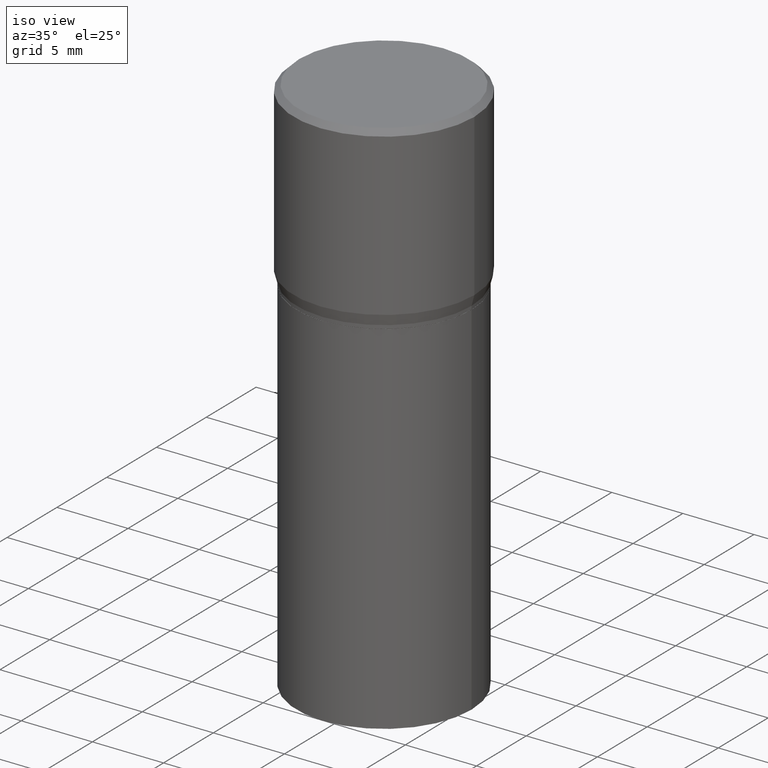
[diagram: clean part render]
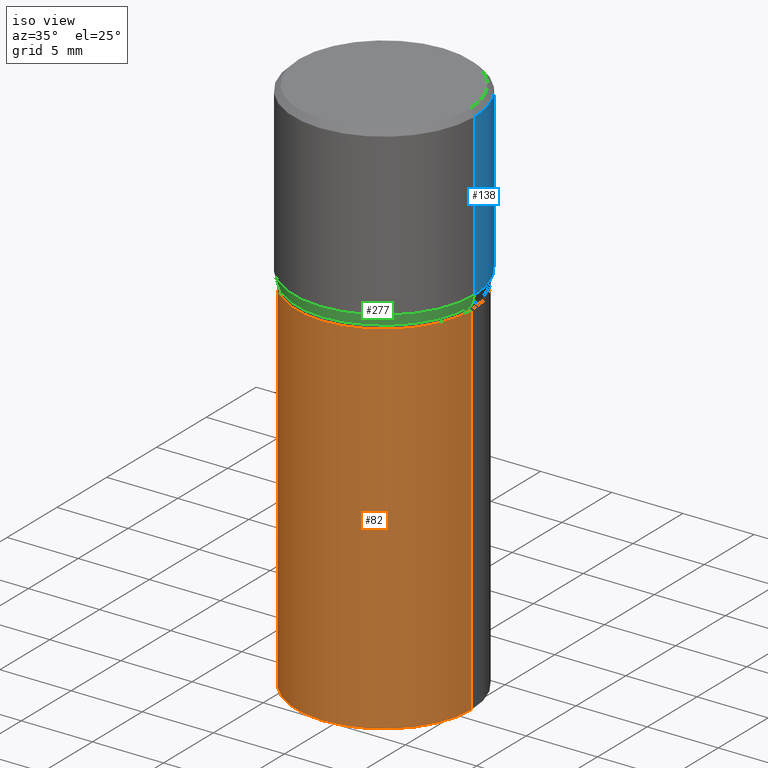
[diagram: same view with three faces highlighted in distinct colors, each labeled with its STEP entity id]
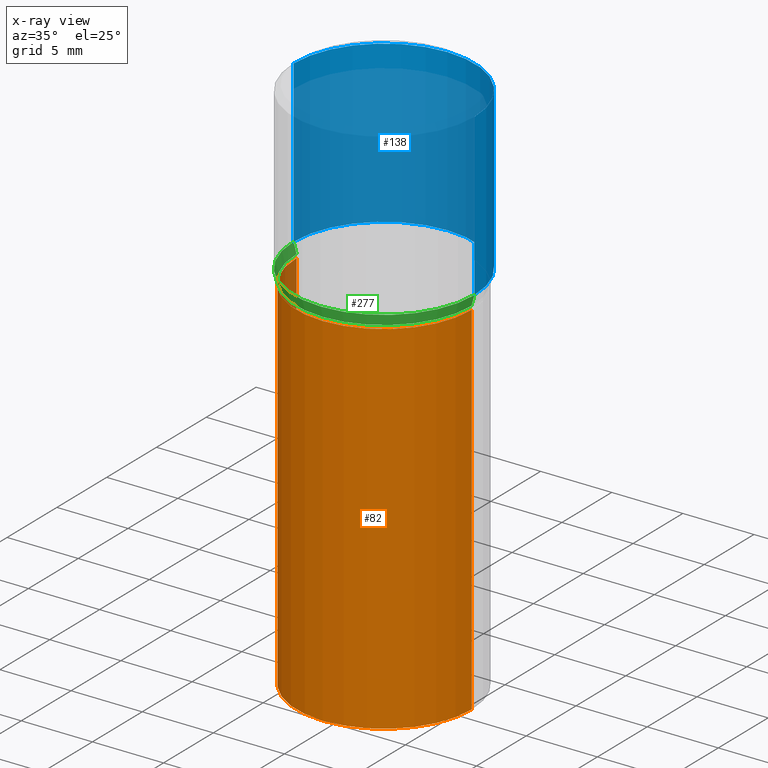
[diagram: x-ray of the same camera — body ghosted, the three highlighted faces saturated]
A machine part, iso view with three faces highlighted in distinct colors.
The next image is the same camera in x-ray (body ghosted, the three faces saturated) — at least one of them is partly hidden behind the body in this view.
Their STEP definitions:

[orange] entity #82 — the highlighted cylindrical surface (partial cylindrical patch) has radius 6.1519 mm, axis along (-0, 0, 1).
#2 = VERTEX_POINT ( 'NONE', #107 ) ;
#18 = VECTOR ( 'NONE', #117, 39.37007874015748143 ) ;
#25 = CIRCLE ( 'NONE', #266, 0.2422000000000000264 ) ;
#29 = LINE ( 'NONE', #422, #116 ) ;
#31 = CARTESIAN_POINT ( 'NONE',  ( 3.668203209277704895E-29, -5.237222008264718177E-15, -1.500000000000000222 ) ) ;
#60 = DIRECTION ( 'NONE',  ( 1.000000000000000000, -6.982962677686266711E-15, 0.000000000000000000 ) ) ;
#65 = ORIENTED_EDGE ( 'NONE', *, *, #213, .T. ) ;
#78 = ORIENTED_EDGE ( 'NONE', *, *, #456, .F. ) ;
#82 = ADVANCED_FACE ( 'NONE', ( #289 ), #287, .T. ) ;
#84 = CARTESIAN_POINT ( 'NONE',  ( -0.2422000000000000264, -1.770546832832183337E-15, -0.5000000000000001110 ) ) ;
#107 = CARTESIAN_POINT ( 'NONE',  ( -0.2422000000000000264, -1.770546832832183337E-15, -1.500000000000000222 ) ) ;
#114 = CARTESIAN_POINT ( 'NONE',  ( 0.2422000000000000264, -6.928495568800332365E-15, -1.500000000000000222 ) ) ;
#116 = VECTOR ( 'NONE', #210, 39.37007874015748143 ) ;
#117 = DIRECTION ( 'NONE',  ( -2.445468806185136877E-29, 3.491481338843145188E-15, 1.000000000000000000 ) ) ;
#121 = LINE ( 'NONE', #160, #18 ) ;
#130 = DIRECTION ( 'NONE',  ( -2.445468806185136597E-29, 3.491481338843145583E-15, 1.000000000000000000 ) ) ;
#160 = CARTESIAN_POINT ( 'NONE',  ( 0.2422000000000000264, -1.691273560535613991E-15, 1.181010015097775692E-29 ) ) ;
#186 = DIRECTION ( 'NONE',  ( 1.000000000000000000, -6.982962677686266711E-15, 4.876176775795935232E-29 ) ) ;
#200 = CIRCLE ( 'NONE', #362, 0.2422000000000000264 ) ;
#202 = VERTEX_POINT ( 'NONE', #84 ) ;
#210 = DIRECTION ( 'NONE',  ( -2.445468806185136877E-29, 3.491481338843145188E-15, 1.000000000000000000 ) ) ;
#213 = EDGE_CURVE ( 'NONE', #220, #218, #121, .T. ) ;
#218 = VERTEX_POINT ( 'NONE', #407 ) ;
#220 = VERTEX_POINT ( 'NONE', #114 ) ;
#266 = AXIS2_PLACEMENT_3D ( 'NONE', #31, #412, #462 ) ;
#287 = CYLINDRICAL_SURFACE ( 'NONE', #301, 0.2422000000000000264 ) ;
#289 = FACE_OUTER_BOUND ( 'NONE', #315, .T. ) ;
#301 = AXIS2_PLACEMENT_3D ( 'NONE', #321, #398, #186 ) ;
#315 = EDGE_LOOP ( 'NONE', ( #380, #389, #65, #78 ) ) ;
#321 = CARTESIAN_POINT ( 'NONE',  ( 0.000000000000000000, 0.000000000000000000, 0.000000000000000000 ) ) ;
#362 = AXIS2_PLACEMENT_3D ( 'NONE', #372, #130, #60 ) ;
#364 = EDGE_CURVE ( 'NONE', #2, #220, #25, .T. ) ;
#372 = CARTESIAN_POINT ( 'NONE',  ( 1.222734403092568719E-29, -1.745740669421573186E-15, -0.5000000000000001110 ) ) ;
#380 = ORIENTED_EDGE ( 'NONE', *, *, #437, .F. ) ;
#389 = ORIENTED_EDGE ( 'NONE', *, *, #364, .T. ) ;
#398 = DIRECTION ( 'NONE',  ( -2.445468806185136597E-29, 3.491481338843145583E-15, 1.000000000000000000 ) ) ;
#407 = CARTESIAN_POINT ( 'NONE',  ( 0.2422000000000000264, -3.437014229957187177E-15, -0.5000000000000001110 ) ) ;
#412 = DIRECTION ( 'NONE',  ( -2.445468806185136597E-29, 3.491481338843145583E-15, 1.000000000000000000 ) ) ;
#422 = CARTESIAN_POINT ( 'NONE',  ( -0.2422000000000000264, 1.720934506010962838E-15, -1.191366078859738205E-29 ) ) ;
#437 = EDGE_CURVE ( 'NONE', #2, #202, #29, .T. ) ;
#456 = EDGE_CURVE ( 'NONE', #202, #218, #200, .T. ) ;
#462 = DIRECTION ( 'NONE',  ( 1.000000000000000000, -6.982962677686265922E-15, 0.000000000000000000 ) ) ;

[blue] entity #138 — the highlighted cylindrical surface (partial cylindrical patch) has radius 6.35 mm, axis along (-0, 0, 1).
#32 = EDGE_LOOP ( 'NONE', ( #423, #388, #458, #413 ) ) ;
#41 = DIRECTION ( 'NONE',  ( 1.000000000000000000, -6.982962677686266711E-15, 0.000000000000000000 ) ) ;
#46 = DIRECTION ( 'NONE',  ( -2.445468806185136597E-29, 3.491481338843145583E-15, 1.000000000000000000 ) ) ;
#56 = VERTEX_POINT ( 'NONE', #189 ) ;
#81 = CARTESIAN_POINT ( 'NONE',  ( 0.2500000000000000000, -1.798112889504214151E-15, -0.01499999999999999944 ) ) ;
#93 = CARTESIAN_POINT ( 'NONE',  ( 1.127092127133256402E-29, -1.609188847181259404E-15, -0.4608900037009626693 ) ) ;
#99 = EDGE_CURVE ( 'NONE', #219, #463, #273, .T. ) ;
#105 = LINE ( 'NONE', #247, #109 ) ;
#109 = VECTOR ( 'NONE', #318, 39.37007874015748143 ) ;
#113 = FACE_OUTER_BOUND ( 'NONE', #32, .T. ) ;
#128 = VERTEX_POINT ( 'NONE', #440 ) ;
#131 = AXIS2_PLACEMENT_3D ( 'NONE', #443, #352, #41 ) ;
#138 = ADVANCED_FACE ( 'NONE', ( #113 ), #176, .T. ) ;
#139 = CARTESIAN_POINT ( 'NONE',  ( -0.2500000000000000000, 9.455763057682970257E-16, -0.01499999999999999944 ) ) ;
#159 = LINE ( 'NONE', #230, #228 ) ;
#176 = CYLINDRICAL_SURFACE ( 'NONE', #187, 0.2500000000000000000 ) ;
#181 = EDGE_CURVE ( 'NONE', #56, #219, #105, .T. ) ;
#187 = AXIS2_PLACEMENT_3D ( 'NONE', #214, #46, #257 ) ;
#189 = CARTESIAN_POINT ( 'NONE',  ( 0.2500000000000000000, -3.354929516602825687E-15, -0.4608900037009626693 ) ) ;
#204 = DIRECTION ( 'NONE',  ( 1.000000000000000000, -6.982962677686266711E-15, 0.000000000000000000 ) ) ;
#207 = DIRECTION ( 'NONE',  ( -2.445468806185136597E-29, 3.491481338843145583E-15, 1.000000000000000000 ) ) ;
#214 = CARTESIAN_POINT ( 'NONE',  ( 0.000000000000000000, 0.000000000000000000, 0.000000000000000000 ) ) ;
#219 = VERTEX_POINT ( 'NONE', #81 ) ;
#228 = VECTOR ( 'NONE', #369, 39.37007874015748143 ) ;
#230 = CARTESIAN_POINT ( 'NONE',  ( -0.2500000000000000000, 1.776356839400250465E-15, -1.229733772563726445E-29 ) ) ;
#247 = CARTESIAN_POINT ( 'NONE',  ( 0.2500000000000000000, -1.745740669421566678E-15, 1.219044193948983948E-29 ) ) ;
#257 = DIRECTION ( 'NONE',  ( 1.000000000000000000, -6.982962677686266711E-15, 4.876176775795935793E-29 ) ) ;
#273 = CIRCLE ( 'NONE', #131, 0.2500000000000000000 ) ;
#279 = EDGE_CURVE ( 'NONE', #128, #463, #159, .T. ) ;
#318 = DIRECTION ( 'NONE',  ( -2.445468806185136877E-29, 3.491481338843145188E-15, 1.000000000000000000 ) ) ;
#338 = AXIS2_PLACEMENT_3D ( 'NONE', #93, #207, #204 ) ;
#347 = CIRCLE ( 'NONE', #338, 0.2500000000000000000 ) ;
#352 = DIRECTION ( 'NONE',  ( -2.445468806185136597E-29, 3.491481338843145583E-15, 1.000000000000000000 ) ) ;
#369 = DIRECTION ( 'NONE',  ( -2.445468806185136877E-29, 3.491481338843145188E-15, 1.000000000000000000 ) ) ;
#378 = EDGE_CURVE ( 'NONE', #56, #128, #347, .T. ) ;
#388 = ORIENTED_EDGE ( 'NONE', *, *, #279, .T. ) ;
#413 = ORIENTED_EDGE ( 'NONE', *, *, #181, .F. ) ;
#423 = ORIENTED_EDGE ( 'NONE', *, *, #378, .T. ) ;
#440 = CARTESIAN_POINT ( 'NONE',  ( -0.2500000000000000000, 1.671679922189909619E-16, -0.4608900037009626693 ) ) ;
#443 = CARTESIAN_POINT ( 'NONE',  ( 3.668203209277705088E-31, -5.237222008264718399E-17, -0.01499999999999999944 ) ) ;
#458 = ORIENTED_EDGE ( 'NONE', *, *, #99, .F. ) ;
#463 = VERTEX_POINT ( 'NONE', #139 ) ;

[green] entity #277 — the highlighted conical surface has half-angle 15 deg.
#21 = DIRECTION ( 'NONE',  ( 1.000000000000000000, -6.982962677686266711E-15, 0.000000000000000000 ) ) ;
#23 = EDGE_CURVE ( 'NONE', #126, #314, #243, .T. ) ;
#27 = ORIENTED_EDGE ( 'NONE', *, *, #35, .F. ) ;
#35 = EDGE_CURVE ( 'NONE', #128, #56, #192, .T. ) ;
#49 = CARTESIAN_POINT ( 'NONE',  ( -0.2421999999999999431, 1.010864997782067697E-17, -0.4900000000000001021 ) ) ;
#56 = VERTEX_POINT ( 'NONE', #189 ) ;
#71 = DIRECTION ( 'NONE',  ( -2.445468806185136597E-29, 3.491481338843145583E-15, 1.000000000000000000 ) ) ;
#76 = CARTESIAN_POINT ( 'NONE',  ( 1.127092127133256402E-29, -1.609188847181259404E-15, -0.4608900037009626693 ) ) ;
#85 = AXIS2_PLACEMENT_3D ( 'NONE', #334, #330, #21 ) ;
#96 = CARTESIAN_POINT ( 'NONE',  ( 0.2421999999999999431, -3.402099416568755134E-15, -0.4900000000000001021 ) ) ;
#103 = ORIENTED_EDGE ( 'NONE', *, *, #269, .F. ) ;
#122 = AXIS2_PLACEMENT_3D ( 'NONE', #76, #149, #282 ) ;
#126 = VERTEX_POINT ( 'NONE', #147 ) ;
#128 = VERTEX_POINT ( 'NONE', #440 ) ;
#147 = CARTESIAN_POINT ( 'NONE',  ( -0.2421999999999999431, 8.863832109840594652E-17, -0.4900000000000001021 ) ) ;
#149 = DIRECTION ( 'NONE',  ( -2.445468806185136597E-29, 3.491481338843145583E-15, 1.000000000000000000 ) ) ;
#189 = CARTESIAN_POINT ( 'NONE',  ( 0.2500000000000000000, -3.354929516602825687E-15, -0.4608900037009626693 ) ) ;
#192 = CIRCLE ( 'NONE', #122, 0.2500000000000000000 ) ;
#212 = CARTESIAN_POINT ( 'NONE',  ( 1.198279715030717173E-29, -1.710825856033141537E-15, -0.4900000000000001021 ) ) ;
#243 = CIRCLE ( 'NONE', #418, 0.2421999999999999431 ) ;
#244 = CARTESIAN_POINT ( 'NONE',  ( 0.2421999999999999431, -3.402099416568755134E-15, -0.4900000000000001021 ) ) ;
#269 = EDGE_CURVE ( 'NONE', #126, #128, #365, .T. ) ;
#277 = ADVANCED_FACE ( 'NONE', ( #448 ), #286, .T. ) ;
#282 = DIRECTION ( 'NONE',  ( 1.000000000000000000, -6.982962677686266711E-15, 0.000000000000000000 ) ) ;
#286 = CONICAL_SURFACE ( 'NONE', #85, 0.2421999999999999431, 0.2617993877991494078 ) ;
#295 = DIRECTION ( 'NONE',  ( -0.2588190451025206840, 5.211531920934545520E-15, 0.9659258262890682012 ) ) ;
#314 = VERTEX_POINT ( 'NONE', #244 ) ;
#317 = VECTOR ( 'NONE', #339, 39.37007874015748854 ) ;
#330 = DIRECTION ( 'NONE',  ( -2.445468806185136597E-29, 3.491481338843145583E-15, 1.000000000000000000 ) ) ;
#334 = CARTESIAN_POINT ( 'NONE',  ( 1.198279715030717173E-29, -1.710825856033141537E-15, -0.4900000000000001021 ) ) ;
#339 = DIRECTION ( 'NONE',  ( 0.2588190451025206840, 1.565188264969626504E-15, 0.9659258262890682012 ) ) ;
#341 = EDGE_CURVE ( 'NONE', #314, #56, #420, .T. ) ;
#343 = ORIENTED_EDGE ( 'NONE', *, *, #341, .T. ) ;
#357 = EDGE_LOOP ( 'NONE', ( #103, #382, #343, #27 ) ) ;
#365 = LINE ( 'NONE', #49, #438 ) ;
#382 = ORIENTED_EDGE ( 'NONE', *, *, #23, .T. ) ;
#396 = DIRECTION ( 'NONE',  ( 1.000000000000000000, -6.982962677686266711E-15, 0.000000000000000000 ) ) ;
#418 = AXIS2_PLACEMENT_3D ( 'NONE', #212, #71, #396 ) ;
#420 = LINE ( 'NONE', #96, #317 ) ;
#438 = VECTOR ( 'NONE', #295, 39.37007874015748854 ) ;
#440 = CARTESIAN_POINT ( 'NONE',  ( -0.2500000000000000000, 1.671679922189909619E-16, -0.4608900037009626693 ) ) ;
#448 = FACE_OUTER_BOUND ( 'NONE', #357, .T. ) ;